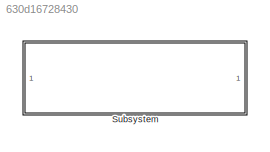
MODEL slx_630d16728430
KIND model
CONFIG AbsTol = auto
CONFIG EnableMultiTasking = off
CONFIG FixedStep = auto
CONFIG MaxStep = auto
CONFIG MinStep = auto
CONFIG RelTol = 1e-3
CONFIG SampleTimeConstraint = Unconstrained
CONFIG SolverName = FixedStepAuto
CONFIG StartTime = 0.0
CONFIG StopTime = 5
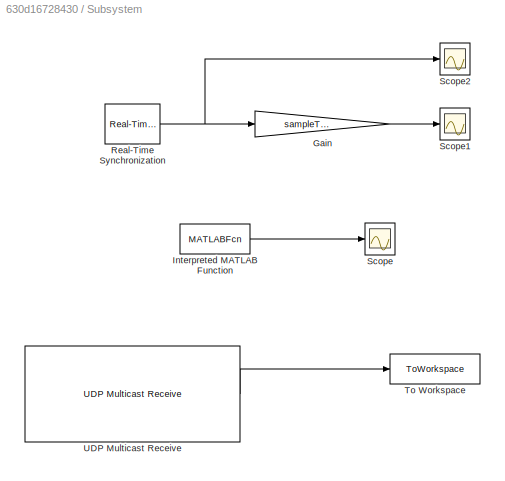
BLOCK [SubSystem] Subsystem
BLOCK [Gain] Subsystem/Gain
  Gain = sampleTime
BLOCK [MATLABFcn] Subsystem/Interpreted MATLAB Function
  MATLABFcn = motiveGetFrameData(natnetclient)
  Output1D = off
  OutputDimensions = 1
BLOCK [Reference] Subsystem/Real-Time Synchronization  REF=sldrtlib/Real-Time
Synchronization
  SourceBlock = sldrtlib/Real-Time\nSynchronization
  SourceType = Simulink Desktop Real-Time Synchronization
BLOCK [Scope] Subsystem/Scope
  Floating = off
  NumInputPorts = 1
  ScopeSpecificationString = Simulink.scopes.TimeScopeBlockCfg('CurrentConfiguration', extmgr.ConfigurationSet(extmgr.Configuration('Core','General UI',true),extmgr.Configuration('Core','Source UI',true),extmgr.Configuration('Sources','WiredSimulink',true),extmgr.Configuration('Visuals','Time Domain',true,'SerializedDisplays',{struct('MinYLimReal','-0.06479','MaxYLimReal','1.80072','YLabelReal','','MinYLimMag','0.00000','MaxY...<+1396ch>
BLOCK [Scope] Subsystem/Scope1
  Floating = off
  NumInputPorts = 1
  ScopeSpecificationString = Simulink.scopes.TimeScopeBlockCfg('CurrentConfiguration', extmgr.ConfigurationSet(extmgr.Configuration('Core','General UI',true),extmgr.Configuration('Core','Source UI',true),extmgr.Configuration('Sources','WiredSimulink',true,'DataLoggingVariableName','ScopeData1'),extmgr.Configuration('Visuals','Time Domain',true,'SerializedDisplays',{struct('MinYLimReal','-0.00625','MaxYLimReal','0.05625','YLab...<+1393ch>
BLOCK [Scope] Subsystem/Scope2
  Floating = off
  NumInputPorts = 1
  ScopeSpecificationString = Simulink.scopes.TimeScopeBlockCfg('CurrentConfiguration', extmgr.ConfigurationSet(extmgr.Configuration('Core','General UI',true),extmgr.Configuration('Core','Source UI',true),extmgr.Configuration('Sources','WiredSimulink',true,'DataLoggingVariableName','ScopeData2'),extmgr.Configuration('Visuals','Time Domain',true,'SerializedDisplays',{struct('MinYLimReal','-0.75','MaxYLimReal','6.75','YLabelReal...<+1441ch>
BLOCK [ToWorkspace] Subsystem/To Workspace
  FixptAsFi = on
  MaxDataPoints = inf
  SampleTime = -1
  SaveFormat = Timeseries
  VariableName = UDPData
BLOCK [Reference] Subsystem/UDP Multicast Receive  REF=slrealtimeiplib/UDP Multicast Receive
  SourceBlock = slrealtimeiplib/UDP Multicast Receive
  SourceType = slrealtimeudpmulticastreceive
LINE Subsystem/Gain:1 -> Subsystem/Scope1:1
LINE Subsystem/Interpreted MATLAB Function:1 -> Subsystem/Scope:1
NET Subsystem/Real-Time Synchronization:1 -> Subsystem/Gain:1, Subsystem/Scope2:1
LINE Subsystem/UDP Multicast Receive:1 -> Subsystem/To Workspace:1
note: NET lines group one-source signal fan-out (src -> all destinations, sorted); 1:1 wires keep LINE
